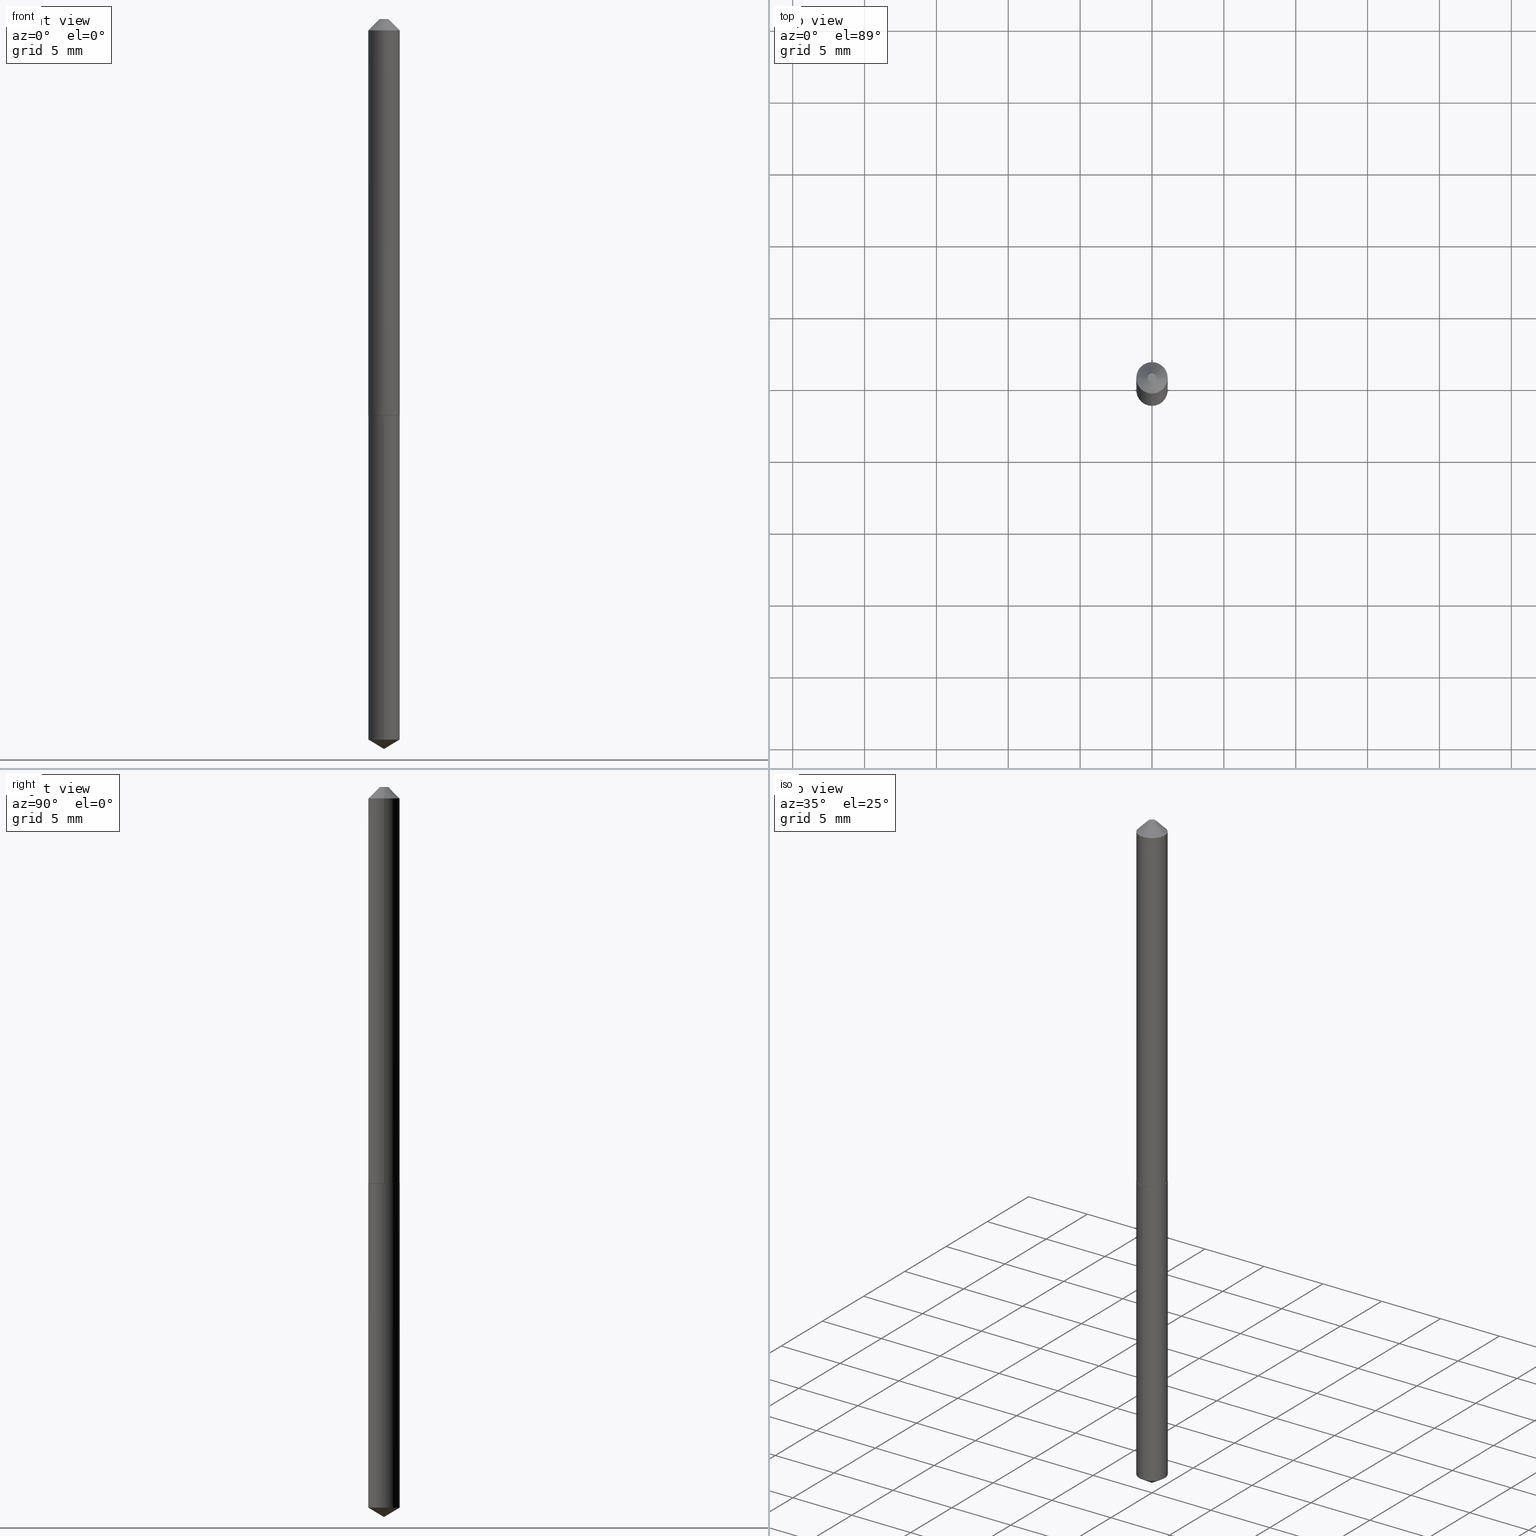
[diagram: canonical four-view strip — front | top / right | iso, engineering-drawing reading convention]
A machine part, canonical four-view strip (front | top / right | iso — engineering-drawing reading convention). The complete STEP part file that produces these views, byte-faithful:
ISO-10303-21;
HEADER;
FILE_DESCRIPTION (( 'STEP AP203' ),
    '1' );
FILE_NAME ('57117.STEP',
    '2024-04-22T22:25:11',
    ( '' ),
    ( '' ),
    'SwSTEP 2.0',
    'SolidWorks 2023',
    '' );
FILE_SCHEMA (( 'CONFIG_CONTROL_DESIGN' ));
ENDSEC;

DATA;
#1 = EDGE_CURVE ( 'NONE', #342, #22, #3, .T. ) ;
#2 = CARTESIAN_POINT ( 'NONE',  ( 7.642090019328602662E-31, -1.091087918388490267E-16, -0.03125000000000020817 ) ) ;
#3 = CIRCLE ( 'NONE', #358, 0.04300000000000001044 ) ;
#4 = PRODUCT_DEFINITION_FORMATION_WITH_SPECIFIED_SOURCE ( 'ANY', '', #85, .NOT_KNOWN. ) ;
#5 = DIRECTION ( 'NONE',  ( 1.000000000000000000, -6.982962677686262766E-15, 0.000000000000000000 ) ) ;
#6 = DIRECTION ( 'NONE',  ( -2.445468806185136877E-29, 3.491481338843145188E-15, 1.000000000000000000 ) ) ;
#7 = DIRECTION ( 'NONE',  ( 1.000000000000000000, -6.982962677686265922E-15, 4.876129382568620809E-29 ) ) ;
#8 = CARTESIAN_POINT ( 'NONE',  ( 2.654556389113965852E-29, -3.790002993314234131E-15, -1.085499999999999909 ) ) ;
#9 = PERSON_AND_ORGANIZATION ( #133, #332 ) ;
#10 = CARTESIAN_POINT ( 'NONE',  ( -0.04300000000000001044, -1.644022516199696687E-15, -0.03125000000000020817 ) ) ;
#11 = LINE ( 'NONE', #139, #40 ) ;
#12 = CALENDAR_DATE ( 2024, 22, 4 ) ;
#13 = ORIENTED_EDGE ( 'NONE', *, *, #1, .F. ) ;
#14 = CARTESIAN_POINT ( 'NONE',  ( 7.642090019328602662E-31, -1.091087918388490267E-16, -0.03125000000000020817 ) ) ;
#15 = CONICAL_SURFACE ( 'NONE', #250, 0.04300000000000001044, 0.7853981633974450594 ) ;
#16 = CIRCLE ( 'NONE', #138, 0.04300000000000014921 ) ;
#17 = ADVANCED_FACE ( 'NONE', ( #345 ), #15, .T. ) ;
#18 = DIRECTION ( 'NONE',  ( -2.445460029168430373E-29, 3.491493908030625659E-15, 1.000000000000000000 ) ) ;
#19 = CC_DESIGN_PERSON_AND_ORGANIZATION_ASSIGNMENT ( #256, #315, ( #85 ) ) ;
#20 = ORIENTED_EDGE ( 'NONE', *, *, #162, .F. ) ;
#21 = MANIFOLD_SOLID_BREP ( 'Body-Move/Copy2[1]', #327 ) ;
#22 = VERTEX_POINT ( 'NONE', #10 ) ;
#23 = CONICAL_SURFACE ( 'NONE', #382, 0.04300000000000014921, 0.7853981633972606513 ) ;
#24 =( CONVERSION_BASED_UNIT ( 'INCH', #47 ) LENGTH_UNIT ( ) NAMED_UNIT ( #46 ) );
#25 = CARTESIAN_POINT ( 'NONE',  ( 4.890920058336860745E-29, -6.982987816061251318E-15, -2.000000000000000000 ) ) ;
#26 = ORIENTED_EDGE ( 'NONE', *, *, #312, .T. ) ;
#27 = DIRECTION ( 'NONE',  ( -6.982962677686265922E-15, -1.000000000000000000, 3.176567434493329168E-15 ) ) ;
#28 = CARTESIAN_POINT ( 'NONE',  ( 0.04300000000000014921, -4.090270388454744578E-15, -1.085499999999999909 ) ) ;
#29 =( GEOMETRIC_REPRESENTATION_CONTEXT ( 3 ) GLOBAL_UNCERTAINTY_ASSIGNED_CONTEXT ( ( #253 ) ) GLOBAL_UNIT_ASSIGNED_CONTEXT ( ( #24, #370, #325 ) ) REPRESENTATION_CONTEXT ( 'NONE', 'WORKASPACE' ) );
#30 = DIRECTION ( 'NONE',  ( -5.985567269335971256E-15, -0.8571673007021145541, 0.5150380749100501587 ) ) ;
#31 = DIRECTION ( 'NONE',  ( -2.445460029168430373E-29, 3.491493908030625659E-15, 1.000000000000000000 ) ) ;
#32 = CARTESIAN_POINT ( 'NONE',  ( 2.655779123517058654E-29, -3.791748733983655635E-15, -1.086000000000000076 ) ) ;
#33 = ADVANCED_FACE ( 'NONE', ( #134 ), #23, .T. ) ;
#34 = AXIS2_PLACEMENT_3D ( 'NONE', #357, #214, #333 ) ;
#35 = LINE ( 'NONE', #38, #353 ) ;
#36 = CYLINDRICAL_SURFACE ( 'NONE', #90, 0.04300000000000000350 ) ;
#37 = CC_DESIGN_PERSON_AND_ORGANIZATION_ASSIGNMENT ( #260, #374, ( #121 ) ) ;
#38 = CARTESIAN_POINT ( 'NONE',  ( 3.055333763768695809E-16, 0.04299999999999620792, -1.086000000000000076 ) ) ;
#39 = COORDINATED_UNIVERSAL_TIME_OFFSET ( 5, 0, .BEHIND. ) ;
#40 = VECTOR ( 'NONE', #135, 39.37007874015748143 ) ;
#41 = CIRCLE ( 'NONE', #53, 0.04300000000000000350 ) ;
#42 = ORIENTED_EDGE ( 'NONE', *, *, #291, .T. ) ;
#43 = LOCAL_TIME ( 18, 25, 11.00000000000000000, #225 ) ;
#44 = PERSON_AND_ORGANIZATION_ROLE ( 'creator' ) ;
#45 = DIRECTION ( 'NONE',  ( 0.7071067811864147901, -2.468850131080866299E-15, 0.7071067811866802444 ) ) ;
#46 = DIMENSIONAL_EXPONENTS ( 1.000000000000000000, 0.000000000000000000, 0.000000000000000000, 0.000000000000000000, 0.000000000000000000, 0.000000000000000000, 0.000000000000000000 ) ;
#47 = LENGTH_MEASURE_WITH_UNIT ( LENGTH_MEASURE( 0.02539999999999999897 ), #77 );
#48 = EDGE_LOOP ( 'NONE', ( #290, #26, #179, #166 ) ) ;
#49 = CYLINDRICAL_SURFACE ( 'NONE', #258, 0.04300000000000000350 ) ;
#50 = EDGE_CURVE ( 'NONE', #237, #110, #226, .T. ) ;
#51 = EDGE_LOOP ( 'NONE', ( #261, #235, #20 ) ) ;
#52 = DIRECTION ( 'NONE',  ( -2.445460029168430373E-29, 3.491493908030625659E-15, 1.000000000000000000 ) ) ;
#53 = AXIS2_PLACEMENT_3D ( 'NONE', #124, #60, #182 ) ;
#54 = AXIS2_PLACEMENT_3D ( 'NONE', #118, #180, #366 ) ;
#55 = ORIENTED_EDGE ( 'NONE', *, *, #337, .F. ) ;
#56 = ORIENTED_EDGE ( 'NONE', *, *, #337, .T. ) ;
#57 = ORIENTED_EDGE ( 'NONE', *, *, #1, .T. ) ;
#58 = CARTESIAN_POINT ( 'NONE',  ( -0.04300000000000007983, 3.055333763768436471E-16, -2.115142088809613253E-30 ) ) ;
#59 = PERSON_AND_ORGANIZATION ( #133, #332 ) ;
#60 = DIRECTION ( 'NONE',  ( -2.445460029168430373E-29, 3.491493908030625659E-15, 1.000000000000000000 ) ) ;
#61 = FACE_OUTER_BOUND ( 'NONE', #320, .T. ) ;
#62 = PLANE ( 'NONE',  #293 ) ;
#63 = EDGE_CURVE ( 'NONE', #340, #342, #11, .T. ) ;
#64 = LINE ( 'NONE', #184, #218 ) ;
#65 = APPROVAL ( #239, 'UNSPECIFIED' ) ;
#66 = CONICAL_SURFACE ( 'NONE', #158, 65.52281426576962531, 1.029744258676662527 ) ;
#67 = DIRECTION ( 'NONE',  ( -0.7071067811864147901, 7.493145998869874533E-15, 0.7071067811866802444 ) ) ;
#68 = APPLICATION_CONTEXT ( 'configuration controlled 3d designs of mechanical parts and assemblies' ) ;
#69 = LINE ( 'NONE', #306, #259 ) ;
#70 = DIRECTION ( 'NONE',  ( -6.982962677686265922E-15, -1.000000000000000000, 3.176567434493329168E-15 ) ) ;
#71 = CC_DESIGN_DATE_AND_TIME_ASSIGNMENT ( #368, #289, ( #131 ) ) ;
#72 = AXIS2_PLACEMENT_3D ( 'NONE', #91, #347, #209 ) ;
#73 = CIRCLE ( 'NONE', #79, 0.01175000000000000176 ) ;
#74 = DIRECTION ( 'NONE',  ( 2.445468806185136597E-29, -3.491481338843145583E-15, -1.000000000000000000 ) ) ;
#75 = PLANE ( 'NONE',  #219 ) ;
#76 = EDGE_LOOP ( 'NONE', ( #228, #113, #144, #371 ) ) ;
#77 =( LENGTH_UNIT ( ) NAMED_UNIT ( * ) SI_UNIT ( $, .METRE. ) );
#78 = VECTOR ( 'NONE', #354, 39.37007874015748143 ) ;
#79 = AXIS2_PLACEMENT_3D ( 'NONE', #220, #128, #7 ) ;
#80 = DIRECTION ( 'NONE',  ( -1.000000000000000000, 6.982962677686265922E-15, 0.000000000000000000 ) ) ;
#81 = PERSON_AND_ORGANIZATION_ROLE ( 'creator' ) ;
#82 = CARTESIAN_POINT ( 'NONE',  ( -5.989671091818642381E-48, 8.551662891793931527E-34, 2.449293598294701954E-19 ) ) ;
#83 = PERSON_AND_ORGANIZATION ( #133, #332 ) ;
#84 = FACE_OUTER_BOUND ( 'NONE', #51, .T. ) ;
#85 = PRODUCT ( '57117', '57117', '', ( #165 ) ) ;
#86 = EDGE_CURVE ( 'NONE', #377, #340, #185, .T. ) ;
#87 = ORIENTED_EDGE ( 'NONE', *, *, #262, .T. ) ;
#88 = DIRECTION ( 'NONE',  ( 6.982962677686265922E-15, 1.000000000000000000, -3.491493908030625265E-15 ) ) ;
#89 = ORIENTED_EDGE ( 'NONE', *, *, #167, .F. ) ;
#90 = AXIS2_PLACEMENT_3D ( 'NONE', #282, #31, #70 ) ;
#91 = CARTESIAN_POINT ( 'NONE',  ( 4.827746223218873245E-29, -6.892764414714510057E-15, -1.974162993381815445 ) ) ;
#92 = ADVANCED_FACE ( 'NONE', ( #319 ), #49, .T. ) ;
#93 = CARTESIAN_POINT ( 'NONE',  ( 0.000000000000000000, 0.000000000000000000, 0.000000000000000000 ) ) ;
#94 = LINE ( 'NONE', #157, #96 ) ;
#95 = VECTOR ( 'NONE', #326, 39.37007874015748143 ) ;
#96 = VECTOR ( 'NONE', #6, 39.37007874015748143 ) ;
#97 = DIRECTION ( 'NONE',  ( 1.000000000000000000, -6.982962677686265922E-15, 4.876176775795935793E-29 ) ) ;
#98 = ADVANCED_FACE ( 'NONE', ( #84 ), #66, .T. ) ;
#99 = CARTESIAN_POINT ( 'NONE',  ( 0.01175000000000000176, -2.423605286084202355E-16, 2.449293598306037496E-19 ) ) ;
#100 = CARTESIAN_POINT ( 'NONE',  ( 0.000000000000000000, 0.000000000000000000, 0.000000000000000000 ) ) ;
#101 = VECTOR ( 'NONE', #45, 39.37007874015748143 ) ;
#102 = DIRECTION ( 'NONE',  ( 1.000000000000000000, -6.982962677686265922E-15, 4.876176775795935793E-29 ) ) ;
#103 = DESIGN_CONTEXT ( 'detailed design', #143, 'design' ) ;
#104 = APPROVAL_STATUS ( 'not_yet_approved' ) ;
#105 = EDGE_LOOP ( 'NONE', ( #87, #142, #13, #195 ) ) ;
#106 = APPLICATION_PROTOCOL_DEFINITION ( 'international standard', 'config_control_design', 1994, #143 ) ;
#107 = CIRCLE ( 'NONE', #280, 0.04300000000000014921 ) ;
#108 = VERTEX_POINT ( 'NONE', #232 ) ;
#109 = CALENDAR_DATE ( 2024, 22, 4 ) ;
#110 = VERTEX_POINT ( 'NONE', #28 ) ;
#111 = DIRECTION ( 'NONE',  ( -6.982962677686265922E-15, -1.000000000000000000, 3.176567434493329168E-15 ) ) ;
#112 = ORIENTED_EDGE ( 'NONE', *, *, #351, .T. ) ;
#113 = ORIENTED_EDGE ( 'NONE', *, *, #162, .T. ) ;
#114 = ORIENTED_EDGE ( 'NONE', *, *, #251, .F. ) ;
#115 = AXIS2_PLACEMENT_3D ( 'NONE', #271, #151, #387 ) ;
#116 = CONICAL_SURFACE ( 'NONE', #373, 0.04300000000000001044, 0.7853981633974450594 ) ;
#117 = VERTEX_POINT ( 'NONE', #145 ) ;
#118 = CARTESIAN_POINT ( 'NONE',  ( 0.000000000000000000, 0.000000000000000000, 0.000000000000000000 ) ) ;
#119 = DIRECTION ( 'NONE',  ( -2.445460029168430373E-29, 3.491493908030625265E-15, 1.000000000000000000 ) ) ;
#120 = CIRCLE ( 'NONE', #172, 0.04250000000000016265 ) ;
#121 = SECURITY_CLASSIFICATION ( '', '', #136 ) ;
#122 = EDGE_LOOP ( 'NONE', ( #322, #42, #378, #210 ) ) ;
#123 = DIRECTION ( 'NONE',  ( 1.000000000000000000, -6.982962677686271444E-15, 0.000000000000000000 ) ) ;
#124 = CARTESIAN_POINT ( 'NONE',  ( 4.827746223218873245E-29, -6.892764414714510057E-15, -1.974162993381815445 ) ) ;
#125 = DIRECTION ( 'NONE',  ( -0.7071067811865452413, 2.468850131082233000E-15, -0.7071067811865497932 ) ) ;
#126 = CIRCLE ( 'NONE', #72, 0.04300000000000000350 ) ;
#127 = FACE_OUTER_BOUND ( 'NONE', #175, .T. ) ;
#128 = DIRECTION ( 'NONE',  ( -2.445468806185136597E-29, 3.491481338843145583E-15, 1.000000000000000000 ) ) ;
#129 = FACE_OUTER_BOUND ( 'NONE', #105, .T. ) ;
#130 = EDGE_CURVE ( 'NONE', #237, #285, #279, .T. ) ;
#131 = PRODUCT_DEFINITION ( 'UNKNOWN', '', #4, #103 ) ;
#132 = APPROVAL_DATE_TIME ( #284, #65 ) ;
#133 = PERSON ( 'UNSPECIFIED', 'UNSPECIFIED', 'UNSPECIFIED', ('UNSPECIFIED'), ('UNSPECIFIED'), ('UNSPECIFIED') ) ;
#134 = FACE_OUTER_BOUND ( 'NONE', #48, .T. ) ;
#135 = DIRECTION ( 'NONE',  ( 0.7071067811865452413, -7.319954787623248157E-15, -0.7071067811865497932 ) ) ;
#136 = SECURITY_CLASSIFICATION_LEVEL ( 'unclassified' ) ;
#137 = ORIENTED_EDGE ( 'NONE', *, *, #86, .T. ) ;
#138 = AXIS2_PLACEMENT_3D ( 'NONE', #8, #186, #309 ) ;
#139 = CARTESIAN_POINT ( 'NONE',  ( 0.04300000000000001044, -4.041102057430249172E-16, -0.03125000000000020817 ) ) ;
#140 = VERTEX_POINT ( 'NONE', #296 ) ;
#141 = DIRECTION ( 'NONE',  ( -6.982962677686265133E-15, -1.000000000000000000, 3.468864327941531105E-15 ) ) ;
#142 = ORIENTED_EDGE ( 'NONE', *, *, #150, .T. ) ;
#143 = APPLICATION_CONTEXT ( 'configuration controlled 3d designs of mechanical parts and assemblies' ) ;
#144 = ORIENTED_EDGE ( 'NONE', *, *, #167, .T. ) ;
#145 = CARTESIAN_POINT ( 'NONE',  ( 3.055333763768913732E-16, 0.04299999999999312011, -1.974162993381815667 ) ) ;
#146 = APPROVAL_STATUS ( 'not_yet_approved' ) ;
#147 = CARTESIAN_POINT ( 'NONE',  ( 4.890939289183120347E-29, -6.982960515786043963E-15, -2.000000000000000000 ) ) ;
#148 = SHAPE_DEFINITION_REPRESENTATION ( #217, #308 ) ;
#149 = ADVANCED_FACE ( 'NONE', ( #61 ), #189, .T. ) ;
#150 = EDGE_CURVE ( 'NONE', #140, #22, #275, .T. ) ;
#151 = DIRECTION ( 'NONE',  ( -2.445468806185136597E-29, 3.491481338843145583E-15, 1.000000000000000000 ) ) ;
#152 = LOCAL_TIME ( 18, 25, 11.00000000000000000, #339 ) ;
#153 = DATE_AND_TIME ( #303, #273 ) ;
#154 = MANIFOLD_SOLID_BREP ( 'Body-Move/Copy2[2]', #321 ) ;
#155 = CARTESIAN_POINT ( 'NONE',  ( -0.04300000000000001044, 1.911586033016605079E-16, -0.03125000000000020817 ) ) ;
#156 = CC_DESIGN_PERSON_AND_ORGANIZATION_ASSIGNMENT ( #349, #81, ( #4 ) ) ;
#157 = CARTESIAN_POINT ( 'NONE',  ( 0.04300000000000007983, -3.002673951405100030E-16, 2.096756013592256259E-30 ) ) ;
#158 = AXIS2_PLACEMENT_3D ( 'NONE', #295, #18, #141 ) ;
#159 = AXIS2_PLACEMENT_3D ( 'NONE', #93, #240, #211 ) ;
#160 = PLANE ( 'NONE',  #328 ) ;
#161 = CARTESIAN_POINT ( 'NONE',  ( 7.642090019328602662E-31, -1.091087918388490267E-16, -0.03125000000000020817 ) ) ;
#162 = EDGE_CURVE ( 'NONE', #117, #255, #41, .T. ) ;
#163 = DIRECTION ( 'NONE',  ( 2.438088387897960049E-29, -3.491481338843145188E-15, -1.000000000000000000 ) ) ;
#164 = AXIS2_PLACEMENT_3D ( 'NONE', #82, #257, #198 ) ;
#165 = MECHANICAL_CONTEXT ( 'NONE', #68, 'mechanical' ) ;
#166 = ORIENTED_EDGE ( 'NONE', *, *, #50, .F. ) ;
#167 = EDGE_CURVE ( 'NONE', #255, #266, #302, .T. ) ;
#168 = CALENDAR_DATE ( 2024, 22, 4 ) ;
#169 = CC_DESIGN_PERSON_AND_ORGANIZATION_ASSIGNMENT ( #59, #44, ( #131 ) ) ;
#170 = PERSON_AND_ORGANIZATION ( #133, #332 ) ;
#171 = CARTESIAN_POINT ( 'NONE',  ( 2.655779123517058654E-29, -3.791748733983655635E-15, -1.086000000000000076 ) ) ;
#172 = AXIS2_PLACEMENT_3D ( 'NONE', #270, #386, #123 ) ;
#173 = EDGE_LOOP ( 'NONE', ( #56, #203 ) ) ;
#174 = VERTEX_POINT ( 'NONE', #25 ) ;
#175 = EDGE_LOOP ( 'NONE', ( #292, #380 ) ) ;
#176 = ORIENTED_EDGE ( 'NONE', *, *, #307, .F. ) ;
#177 = CARTESIAN_POINT ( 'NONE',  ( 2.655779123517058654E-29, -3.791748733983656424E-15, -1.086000000000000076 ) ) ;
#178 = CALENDAR_DATE ( 2024, 22, 4 ) ;
#179 = ORIENTED_EDGE ( 'NONE', *, *, #262, .F. ) ;
#180 = DIRECTION ( 'NONE',  ( 0.000000000000000000, 0.000000000000000000, 1.000000000000000000 ) ) ;
#181 = EDGE_CURVE ( 'NONE', #108, #266, #298, .T. ) ;
#182 = DIRECTION ( 'NONE',  ( -6.982962677686265922E-15, -1.000000000000000000, 6.353134868986658336E-15 ) ) ;
#183 = CARTESIAN_POINT ( 'NONE',  ( 2.655779123517058654E-29, -3.791748733983655635E-15, -1.086000000000000076 ) ) ;
#184 = CARTESIAN_POINT ( 'NONE',  ( 4.890920058336860745E-29, -6.982987816061251318E-15, -2.000000000000000000 ) ) ;
#185 = CIRCLE ( 'NONE', #164, 0.01175000000000000176 ) ;
#186 = DIRECTION ( 'NONE',  ( -2.445468806185136597E-29, 3.491481338843145583E-15, 1.000000000000000000 ) ) ;
#187 = CARTESIAN_POINT ( 'NONE',  ( -3.002673951404828859E-16, -0.04300000000000379213, -1.085999999999999854 ) ) ;
#188 = CARTESIAN_POINT ( 'NONE',  ( 0.04300000000000001044, -4.093761869793585120E-16, -0.03125000000000020817 ) ) ;
#189 = CONICAL_SURFACE ( 'NONE', #115, 0.04300000000000014921, 0.7853981633972606513 ) ;
#190 = CARTESIAN_POINT ( 'NONE',  ( -0.04250000000000016265, -3.487118844111501587E-15, -1.086000000000000076 ) ) ;
#191 = CARTESIAN_POINT ( 'NONE',  ( -2.994835545909321190E-48, 4.275831445896965764E-34, 1.224646799147350977E-19 ) ) ;
#192 = EDGE_CURVE ( 'NONE', #174, #117, #390, .T. ) ;
#193 = DIRECTION ( 'NONE',  ( -2.445468806185136597E-29, 3.491481338843145583E-15, 1.000000000000000000 ) ) ;
#194 = APPLICATION_PROTOCOL_DEFINITION ( 'international standard', 'config_control_design', 1994, #68 ) ;
#195 = ORIENTED_EDGE ( 'NONE', *, *, #304, .F. ) ;
#196 = CARTESIAN_POINT ( 'NONE',  ( 2.654556389113965852E-29, -3.790002993314234131E-15, -1.085499999999999909 ) ) ;
#197 = PERSON_AND_ORGANIZATION ( #133, #332 ) ;
#198 = DIRECTION ( 'NONE',  ( 1.000000000000000000, -6.982962677686265922E-15, 4.876129382568620809E-29 ) ) ;
#199 = EDGE_CURVE ( 'NONE', #255, #117, #126, .T. ) ;
#200 = ORIENTED_EDGE ( 'NONE', *, *, #63, .T. ) ;
#201 = ADVANCED_FACE ( 'NONE', ( #330 ), #62, .F. ) ;
#202 = EDGE_LOOP ( 'NONE', ( #268, #200, #57, #176 ) ) ;
#203 = ORIENTED_EDGE ( 'NONE', *, *, #181, .T. ) ;
#204 = DIRECTION ( 'NONE',  ( -2.445460029168430373E-29, 3.491493908030625659E-15, 1.000000000000000000 ) ) ;
#205 = APPROVAL_ROLE ( '' ) ;
#206 = COORDINATED_UNIVERSAL_TIME_OFFSET ( 5, 0, .BEHIND. ) ;
#207 = VECTOR ( 'NONE', #125, 39.37007874015748143 ) ;
#208 = CC_DESIGN_PERSON_AND_ORGANIZATION_ASSIGNMENT ( #197, #317, ( #4 ) ) ;
#209 = DIRECTION ( 'NONE',  ( -6.982962677686265922E-15, -1.000000000000000000, 6.353134868986658336E-15 ) ) ;
#210 = ORIENTED_EDGE ( 'NONE', *, *, #351, .F. ) ;
#211 = DIRECTION ( 'NONE',  ( 1.000000000000000000, -6.982962677686265922E-15, 4.876176775795935793E-29 ) ) ;
#212 = APPROVAL_DATE_TIME ( #153, #355 ) ;
#213 = LOCAL_TIME ( 18, 25, 11.00000000000000000, #206 ) ;
#214 = DIRECTION ( 'NONE',  ( -2.445460029168430373E-29, 3.491493908030625659E-15, 1.000000000000000000 ) ) ;
#215 = FACE_OUTER_BOUND ( 'NONE', #76, .T. ) ;
#216 = DIRECTION ( 'NONE',  ( -2.445468806185136597E-29, 3.491481338843145583E-15, 1.000000000000000000 ) ) ;
#217 = PRODUCT_DEFINITION_SHAPE ( 'NONE', 'NONE',  #131 ) ;
#218 = VECTOR ( 'NONE', #30, 39.37007874015748854 ) ;
#219 = AXIS2_PLACEMENT_3D ( 'NONE', #191, #163, #283 ) ;
#220 = CARTESIAN_POINT ( 'NONE',  ( -5.989671091818642381E-48, 8.551662891793931527E-34, 2.449293598294701954E-19 ) ) ;
#221 = APPROVAL_ROLE ( '' ) ;
#222 = ORIENTED_EDGE ( 'NONE', *, *, #307, .T. ) ;
#223 = ORIENTED_EDGE ( 'NONE', *, *, #192, .T. ) ;
#224 = CC_DESIGN_APPROVAL ( #65, ( #131 ) ) ;
#225 = COORDINATED_UNIVERSAL_TIME_OFFSET ( 5, 0, .BEHIND. ) ;
#226 = LINE ( 'NONE', #287, #101 ) ;
#227 = DATE_AND_TIME ( #109, #213 ) ;
#228 = ORIENTED_EDGE ( 'NONE', *, *, #352, .F. ) ;
#229 = CARTESIAN_POINT ( 'NONE',  ( 7.642090019328602662E-31, -1.091087918388490267E-16, -0.03125000000000020817 ) ) ;
#230 = EDGE_CURVE ( 'NONE', #285, #237, #120, .T. ) ;
#231 = ORIENTED_EDGE ( 'NONE', *, *, #63, .F. ) ;
#232 = CARTESIAN_POINT ( 'NONE',  ( 3.055333763768914225E-16, 0.04299999999999620792, -1.086000000000000076 ) ) ;
#233 = EDGE_LOOP ( 'NONE', ( #264, #344, #55, #89 ) ) ;
#234 = CC_DESIGN_SECURITY_CLASSIFICATION ( #121, ( #4 ) ) ;
#235 = ORIENTED_EDGE ( 'NONE', *, *, #251, .T. ) ;
#236 = ADVANCED_FACE ( 'NONE', ( #242 ), #356, .T. ) ;
#237 = VERTEX_POINT ( 'NONE', #331 ) ;
#238 = CARTESIAN_POINT ( 'NONE',  ( -3.002673951404828859E-16, -0.04300000000000379213, -1.085999999999999854 ) ) ;
#239 = APPROVAL_STATUS ( 'not_yet_approved' ) ;
#240 = DIRECTION ( 'NONE',  ( -2.445468806185136597E-29, 3.491481338843145583E-15, 1.000000000000000000 ) ) ;
#241 = CC_DESIGN_APPROVAL ( #254, ( #4 ) ) ;
#242 = FACE_OUTER_BOUND ( 'NONE', #122, .T. ) ;
#243 = CARTESIAN_POINT ( 'NONE',  ( 2.655779123517058654E-29, -3.791748733983656424E-15, -1.086000000000000076 ) ) ;
#244 = CARTESIAN_POINT ( 'NONE',  ( -3.002673951404612415E-16, -0.04300000000000690770, -1.974162993381815001 ) ) ;
#245 = AXIS2_PLACEMENT_3D ( 'NONE', #272, #204, #27 ) ;
#246 = CIRCLE ( 'NONE', #359, 0.04300000000000001044 ) ;
#247 = FACE_OUTER_BOUND ( 'NONE', #348, .T. ) ;
#248 = DIRECTION ( 'NONE',  ( 1.000000000000000000, -6.982962677686265922E-15, 0.000000000000000000 ) ) ;
#249 = CYLINDRICAL_SURFACE ( 'NONE', #294, 0.04300000000000007983 ) ;
#250 = AXIS2_PLACEMENT_3D ( 'NONE', #14, #346, #80 ) ;
#251 = EDGE_CURVE ( 'NONE', #174, #255, #64, .T. ) ;
#252 = DATE_TIME_ROLE ( 'classification_date' ) ;
#253 = UNCERTAINTY_MEASURE_WITH_UNIT (LENGTH_MEASURE( 1.000000000000000082E-05 ), #24, 'distance_accuracy_value', 'NONE');
#254 = APPROVAL ( #104, 'UNSPECIFIED' ) ;
#255 = VERTEX_POINT ( 'NONE', #244 ) ;
#256 = PERSON_AND_ORGANIZATION ( #133, #332 ) ;
#257 = DIRECTION ( 'NONE',  ( -2.445468806185136597E-29, 3.491481338843145583E-15, 1.000000000000000000 ) ) ;
#258 = AXIS2_PLACEMENT_3D ( 'NONE', #171, #52, #111 ) ;
#259 = VECTOR ( 'NONE', #67, 39.37007874015748143 ) ;
#260 = PERSON_AND_ORGANIZATION ( #133, #332 ) ;
#261 = ORIENTED_EDGE ( 'NONE', *, *, #192, .F. ) ;
#262 = EDGE_CURVE ( 'NONE', #110, #140, #107, .T. ) ;
#263 = PRODUCT_RELATED_PRODUCT_CATEGORY ( 'detail', '', ( #85 ) ) ;
#264 = ORIENTED_EDGE ( 'NONE', *, *, #199, .T. ) ;
#265 = DIRECTION ( 'NONE',  ( 1.000000000000000000, -6.982962677686262766E-15, 0.000000000000000000 ) ) ;
#266 = VERTEX_POINT ( 'NONE', #187 ) ;
#267 = VECTOR ( 'NONE', #119, 39.37007874015748143 ) ;
#268 = ORIENTED_EDGE ( 'NONE', *, *, #367, .F. ) ;
#269 = APPROVAL_PERSON_ORGANIZATION ( #9, #254, #221 ) ;
#270 = CARTESIAN_POINT ( 'NONE',  ( 2.655779123517058654E-29, -3.791748733983656424E-15, -1.086000000000000076 ) ) ;
#271 = CARTESIAN_POINT ( 'NONE',  ( 2.654556389113965852E-29, -3.790002993314234131E-15, -1.085499999999999909 ) ) ;
#272 = CARTESIAN_POINT ( 'NONE',  ( 2.655779123517058654E-29, -3.791748733983655635E-15, -1.086000000000000076 ) ) ;
#273 = LOCAL_TIME ( 18, 25, 11.00000000000000000, #297 ) ;
#274 = ADVANCED_FACE ( 'NONE', ( #127 ), #160, .F. ) ;
#275 = LINE ( 'NONE', #58, #95 ) ;
#276 = DIRECTION ( 'NONE',  ( -1.000000000000000000, 6.982962677686265922E-15, 0.000000000000000000 ) ) ;
#277 = ADVANCED_FACE ( 'NONE', ( #335 ), #116, .T. ) ;
#278 = DIRECTION ( 'NONE',  ( -6.982962677686265922E-15, -1.000000000000000000, 3.176567434493329168E-15 ) ) ;
#279 = CIRCLE ( 'NONE', #372, 0.04250000000000016265 ) ;
#280 = AXIS2_PLACEMENT_3D ( 'NONE', #361, #216, #5 ) ;
#281 = DIRECTION ( 'NONE',  ( -2.445460029168430373E-29, 3.491493908030625265E-15, 1.000000000000000000 ) ) ;
#282 = CARTESIAN_POINT ( 'NONE',  ( 2.655779123517058654E-29, -3.791748733983655635E-15, -1.086000000000000076 ) ) ;
#283 = DIRECTION ( 'NONE',  ( -1.000000000000000000, 6.982962677686265922E-15, -4.876176775795935793E-29 ) ) ;
#284 = DATE_AND_TIME ( #12, #305 ) ;
#285 = VERTEX_POINT ( 'NONE', #190 ) ;
#286 = DATE_AND_TIME ( #168, #152 ) ;
#287 = CARTESIAN_POINT ( 'NONE',  ( 0.04300000000000014921, -4.090270388454744578E-15, -1.085499999999999909 ) ) ;
#288 = ADVANCED_FACE ( 'NONE', ( #247 ), #388, .T. ) ;
#289 = DATE_TIME_ROLE ( 'creation_date' ) ;
#290 = ORIENTED_EDGE ( 'NONE', *, *, #130, .T. ) ;
#291 = EDGE_CURVE ( 'NONE', #140, #110, #16, .T. ) ;
#292 = ORIENTED_EDGE ( 'NONE', *, *, #130, .F. ) ;
#293 = AXIS2_PLACEMENT_3D ( 'NONE', #183, #389, #88 ) ;
#294 = AXIS2_PLACEMENT_3D ( 'NONE', #100, #364, #102 ) ;
#295 = CARTESIAN_POINT ( 'NONE',  ( -9.138702431409190661E-28, 1.304774159140222404E-13, 37.37007874015748143 ) ) ;
#296 = CARTESIAN_POINT ( 'NONE',  ( -0.04300000000000014921, -3.484469616937389991E-15, -1.085499999999999909 ) ) ;
#297 = COORDINATED_UNIVERSAL_TIME_OFFSET ( 5, 0, .BEHIND. ) ;
#298 = CIRCLE ( 'NONE', #245, 0.04300000000000000350 ) ;
#299 = APPROVAL_PERSON_ORGANIZATION ( #170, #65, #301 ) ;
#300 = ORIENTED_EDGE ( 'NONE', *, *, #367, .T. ) ;
#301 = APPROVAL_ROLE ( '' ) ;
#302 = LINE ( 'NONE', #238, #267 ) ;
#303 = CALENDAR_DATE ( 2024, 22, 4 ) ;
#304 = EDGE_CURVE ( 'NONE', #110, #342, #94, .T. ) ;
#305 = LOCAL_TIME ( 18, 25, 11.00000000000000000, #39 ) ;
#306 = CARTESIAN_POINT ( 'NONE',  ( -0.04300000000000014921, -3.484469616937389991E-15, -1.085499999999999909 ) ) ;
#307 = EDGE_CURVE ( 'NONE', #377, #22, #311, .T. ) ;
#308 = ADVANCED_BREP_SHAPE_REPRESENTATION ( '57117', ( #21, #154, #54 ), #29 ) ;
#309 = DIRECTION ( 'NONE',  ( 1.000000000000000000, -6.982962677686262766E-15, 0.000000000000000000 ) ) ;
#310 = DIRECTION ( 'NONE',  ( -2.445468806185136597E-29, 3.491481338843145583E-15, 1.000000000000000000 ) ) ;
#311 = LINE ( 'NONE', #155, #207 ) ;
#312 = EDGE_CURVE ( 'NONE', #285, #140, #69, .T. ) ;
#313 = DIRECTION ( 'NONE',  ( 1.000000000000000000, -6.982962677686265922E-15, 0.000000000000000000 ) ) ;
#314 = CIRCLE ( 'NONE', #383, 0.04300000000000000350 ) ;
#315 = PERSON_AND_ORGANIZATION_ROLE ( 'design_owner' ) ;
#316 = DIRECTION ( 'NONE',  ( -2.445468806185136597E-29, 3.491481338843145583E-15, 1.000000000000000000 ) ) ;
#317 = PERSON_AND_ORGANIZATION_ROLE ( 'design_supplier' ) ;
#318 = ORIENTED_EDGE ( 'NONE', *, *, #199, .F. ) ;
#319 = FACE_OUTER_BOUND ( 'NONE', #233, .T. ) ;
#320 = EDGE_LOOP ( 'NONE', ( #350, #384, #375, #376 ) ) ;
#321 = CLOSED_SHELL ( 'NONE', ( #17, #379, #33, #274, #149, #236, #277, #385 ) ) ;
#322 = ORIENTED_EDGE ( 'NONE', *, *, #150, .F. ) ;
#323 = EDGE_LOOP ( 'NONE', ( #231, #381, #222, #112 ) ) ;
#324 = DIRECTION ( 'NONE',  ( 1.000000000000000000, -6.982962677686271444E-15, 0.000000000000000000 ) ) ;
#325 =( NAMED_UNIT ( * ) SI_UNIT ( $, .STERADIAN. ) SOLID_ANGLE_UNIT ( ) );
#326 = DIRECTION ( 'NONE',  ( -2.445468806185136877E-29, 3.491481338843145188E-15, 1.000000000000000000 ) ) ;
#327 = CLOSED_SHELL ( 'NONE', ( #92, #288, #98, #341, #201 ) ) ;
#328 = AXIS2_PLACEMENT_3D ( 'NONE', #243, #360, #97 ) ;
#329 = DIRECTION ( 'NONE',  ( -2.445468806185136597E-29, 3.491481338843145583E-15, 1.000000000000000000 ) ) ;
#330 = FACE_OUTER_BOUND ( 'NONE', #173, .T. ) ;
#331 = CARTESIAN_POINT ( 'NONE',  ( 0.04250000000000016265, -4.088524647785323863E-15, -1.086000000000000076 ) ) ;
#332 = ORGANIZATION ( 'UNSPECIFIED', 'UNSPECIFIED', '' ) ;
#333 = DIRECTION ( 'NONE',  ( -6.982962677686265133E-15, -1.000000000000000000, 3.468864327941531105E-15 ) ) ;
#334 = DIRECTION ( 'NONE',  ( -2.445460029168430373E-29, 3.491493908030625659E-15, 1.000000000000000000 ) ) ;
#335 = FACE_OUTER_BOUND ( 'NONE', #323, .T. ) ;
#336 = APPROVAL_PERSON_ORGANIZATION ( #83, #355, #205 ) ;
#337 = EDGE_CURVE ( 'NONE', #266, #108, #314, .T. ) ;
#338 = FACE_OUTER_BOUND ( 'NONE', #369, .T. ) ;
#339 = COORDINATED_UNIVERSAL_TIME_OFFSET ( 5, 0, .BEHIND. ) ;
#340 = VERTEX_POINT ( 'NONE', #99 ) ;
#341 = ADVANCED_FACE ( 'NONE', ( #215 ), #36, .T. ) ;
#342 = VERTEX_POINT ( 'NONE', #188 ) ;
#343 = APPROVAL_DATE_TIME ( #286, #254 ) ;
#344 = ORIENTED_EDGE ( 'NONE', *, *, #352, .T. ) ;
#345 = FACE_OUTER_BOUND ( 'NONE', #202, .T. ) ;
#346 = DIRECTION ( 'NONE',  ( 2.445468806185136597E-29, -3.491481338843145583E-15, -1.000000000000000000 ) ) ;
#347 = DIRECTION ( 'NONE',  ( -2.445460029168430373E-29, 3.491493908030625659E-15, 1.000000000000000000 ) ) ;
#348 = EDGE_LOOP ( 'NONE', ( #114, #223, #318 ) ) ;
#349 = PERSON_AND_ORGANIZATION ( #133, #332 ) ;
#350 = ORIENTED_EDGE ( 'NONE', *, *, #312, .F. ) ;
#351 = EDGE_CURVE ( 'NONE', #22, #342, #246, .T. ) ;
#352 = EDGE_CURVE ( 'NONE', #117, #108, #35, .T. ) ;
#353 = VECTOR ( 'NONE', #281, 39.37007874015748143 ) ;
#354 = DIRECTION ( 'NONE',  ( 6.090539988449809201E-15, 0.8571673007021183288, 0.5150380749100442745 ) ) ;
#355 = APPROVAL ( #146, 'UNSPECIFIED' ) ;
#356 = CYLINDRICAL_SURFACE ( 'NONE', #159, 0.04300000000000007983 ) ;
#357 = CARTESIAN_POINT ( 'NONE',  ( -9.138702431409190661E-28, 1.304774159140222404E-13, 37.37007874015748143 ) ) ;
#358 = AXIS2_PLACEMENT_3D ( 'NONE', #229, #193, #313 ) ;
#359 = AXIS2_PLACEMENT_3D ( 'NONE', #161, #310, #248 ) ;
#360 = DIRECTION ( 'NONE',  ( -2.438088387897960049E-29, 3.491481338843145188E-15, 1.000000000000000000 ) ) ;
#361 = CARTESIAN_POINT ( 'NONE',  ( 2.654556389113965852E-29, -3.790002993314234131E-15, -1.085499999999999909 ) ) ;
#362 = CARTESIAN_POINT ( 'NONE',  ( -0.01175000000000000176, 1.366042073822370669E-16, 2.449293598287058901E-19 ) ) ;
#363 = CC_DESIGN_DATE_AND_TIME_ASSIGNMENT ( #227, #252, ( #121 ) ) ;
#364 = DIRECTION ( 'NONE',  ( -2.445468806185136597E-29, 3.491481338843145583E-15, 1.000000000000000000 ) ) ;
#365 = CC_DESIGN_APPROVAL ( #355, ( #121 ) ) ;
#366 = DIRECTION ( 'NONE',  ( 1.000000000000000000, 0.000000000000000000, 0.000000000000000000 ) ) ;
#367 = EDGE_CURVE ( 'NONE', #340, #377, #73, .T. ) ;
#368 = DATE_AND_TIME ( #178, #43 ) ;
#369 = EDGE_LOOP ( 'NONE', ( #137, #300 ) ) ;
#370 =( NAMED_UNIT ( * ) PLANE_ANGLE_UNIT ( ) SI_UNIT ( $, .RADIAN. ) );
#371 = ORIENTED_EDGE ( 'NONE', *, *, #181, .F. ) ;
#372 = AXIS2_PLACEMENT_3D ( 'NONE', #177, #329, #324 ) ;
#373 = AXIS2_PLACEMENT_3D ( 'NONE', #2, #74, #276 ) ;
#374 = PERSON_AND_ORGANIZATION_ROLE ( 'classification_officer' ) ;
#375 = ORIENTED_EDGE ( 'NONE', *, *, #50, .T. ) ;
#376 = ORIENTED_EDGE ( 'NONE', *, *, #291, .F. ) ;
#377 = VERTEX_POINT ( 'NONE', #362 ) ;
#378 = ORIENTED_EDGE ( 'NONE', *, *, #304, .T. ) ;
#379 = ADVANCED_FACE ( 'NONE', ( #129 ), #249, .T. ) ;
#380 = ORIENTED_EDGE ( 'NONE', *, *, #230, .F. ) ;
#381 = ORIENTED_EDGE ( 'NONE', *, *, #86, .F. ) ;
#382 = AXIS2_PLACEMENT_3D ( 'NONE', #196, #316, #265 ) ;
#383 = AXIS2_PLACEMENT_3D ( 'NONE', #32, #334, #278 ) ;
#384 = ORIENTED_EDGE ( 'NONE', *, *, #230, .T. ) ;
#385 = ADVANCED_FACE ( 'NONE', ( #338 ), #75, .F. ) ;
#386 = DIRECTION ( 'NONE',  ( -2.445468806185136597E-29, 3.491481338843145583E-15, 1.000000000000000000 ) ) ;
#387 = DIRECTION ( 'NONE',  ( 1.000000000000000000, -6.982962677686262766E-15, 0.000000000000000000 ) ) ;
#388 = CONICAL_SURFACE ( 'NONE', #34, 65.52281426576962531, 1.029744258676662527 ) ;
#389 = DIRECTION ( 'NONE',  ( 2.445460029168430373E-29, -3.491493908030625265E-15, -1.000000000000000000 ) ) ;
#390 = LINE ( 'NONE', #147, #78 ) ;
ENDSEC;
END-ISO-10303-21;
